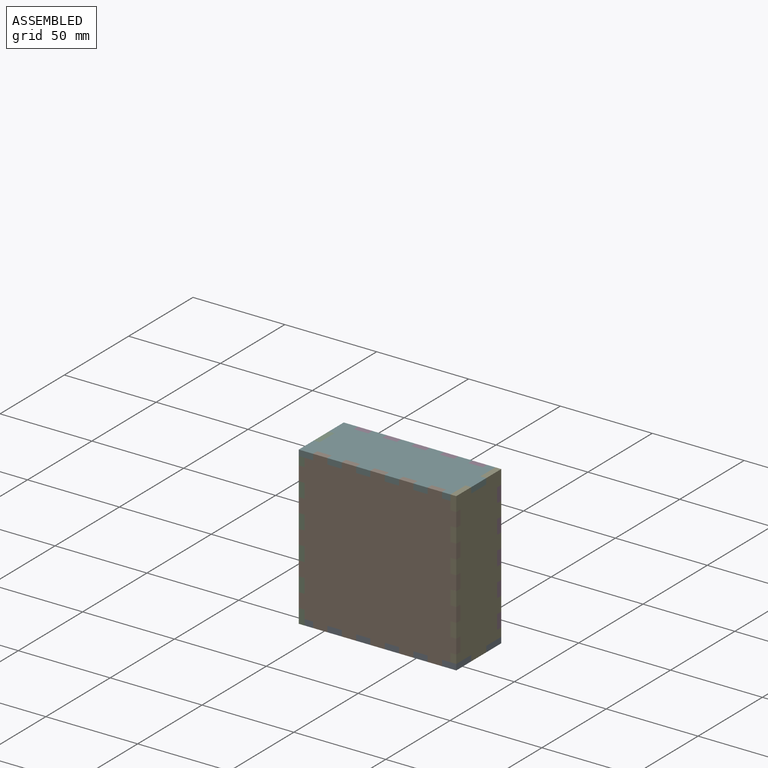
[diagram: assembled view]
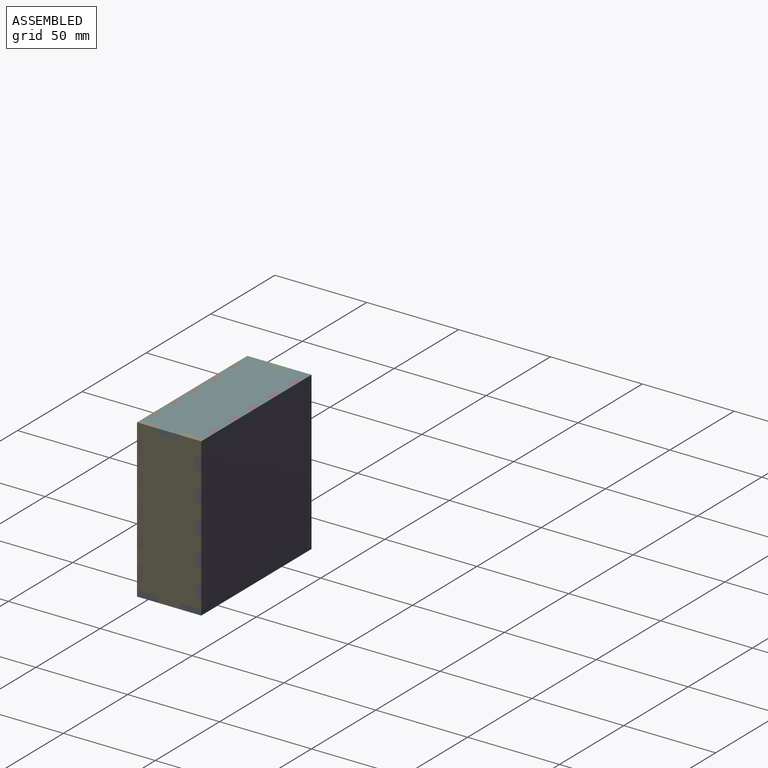
[diagram: assembled view, second angle]
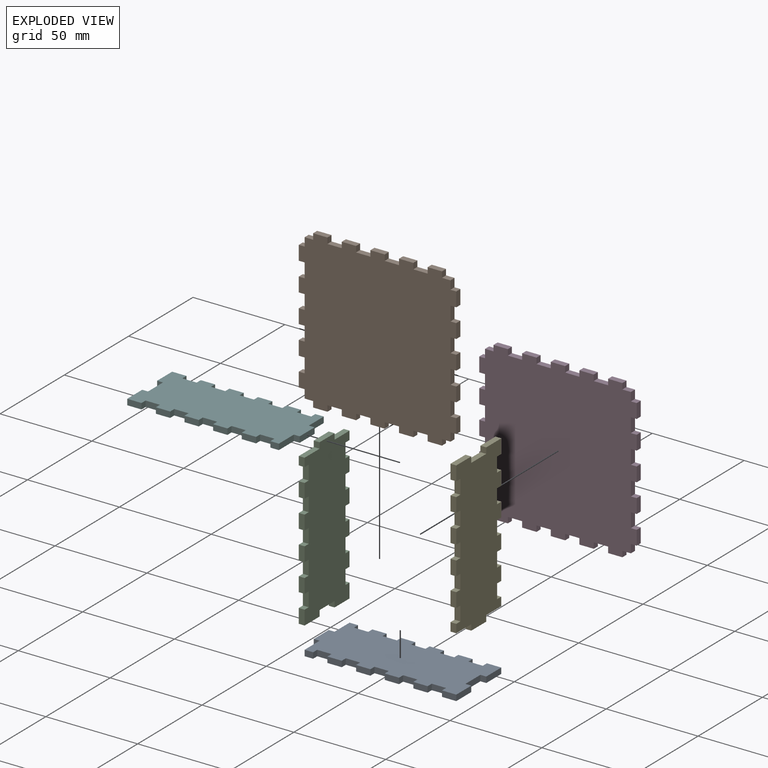
[diagram: exploded view]
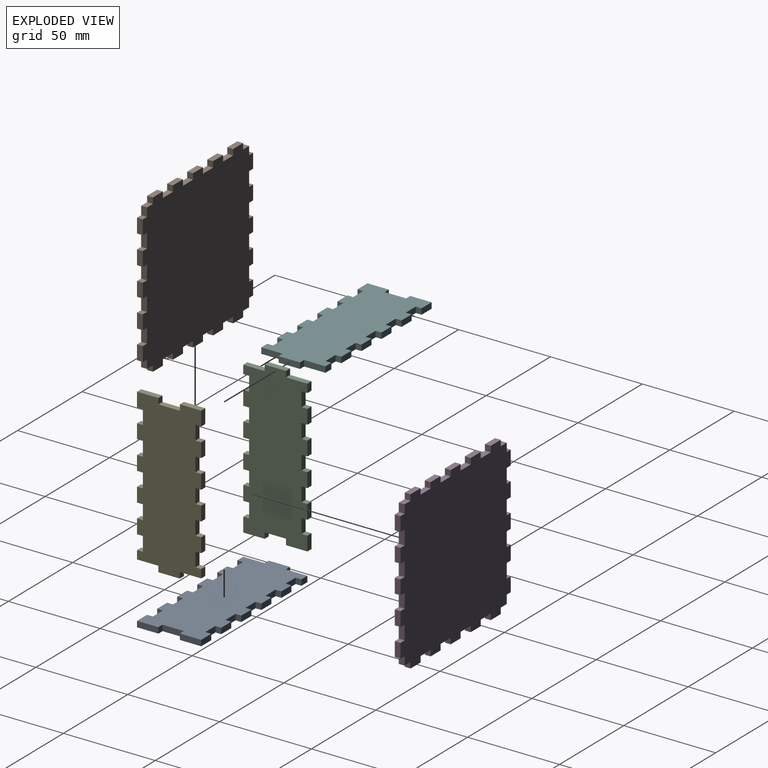
[diagram: exploded view, second angle]
ASSEMBLY  parts=6 mates=5
PART A: 54 faces, bbox 85.7x3.2x34.9 mm
  f0: plane 11.64x3.18mm, normal (1,0,0), area 37mm2, adj f1,f51,f52,f53
  f1: plane 4.62x3.18mm, normal (0,0,1), area 14.7mm2, adj f0,f2,f52,f53
  f2: plane 3.18x3.18mm, normal (-1,0,0), area 10.1mm2, adj f1,f3,f52,f53
  f3: plane 7.79x3.18mm, normal (0,0,1), area 24.7mm2, adj f2,f4,f52,f53
  f4: plane 3.18x3.18mm, normal (1,0,0), area 10.1mm2, adj f3,f5,f52,f53
  f5: plane 7.79x3.18mm, normal (0,0,1), area 24.7mm2, adj f4,f6,f52,f53
  f6: plane 3.18x3.18mm, normal (-1,0,0), area 10.1mm2, adj f5,f7,f52,f53
  f7: plane 7.79x3.18mm, normal (0,0,1), area 24.7mm2, adj f6,f8,f52,f53
  f8: plane 3.18x3.18mm, normal (1,0,0), area 10.1mm2, adj f7,f9,f52,f53
  f9: plane 7.79x3.18mm, normal (0,0,1), area 24.7mm2, adj f8,f10,f52,f53
  f10: plane 3.18x3.18mm, normal (-1,0,0), area 10.1mm2, adj f9,f11,f52,f53
  f11: plane 7.79x3.18mm, normal (0,0,1), area 24.7mm2, adj f10,f12,f52,f53
  f12: plane 3.18x3.18mm, normal (1,0,0), area 10.1mm2, adj f11,f13,f52,f53
  f13: plane 7.79x3.18mm, normal (0,0,1), area 24.7mm2, adj f12,f14,f52,f53
  f14: plane 3.18x3.18mm, normal (-1,0,0), area 10.1mm2, adj f13,f15,f52,f53
  f15: plane 7.79x3.18mm, normal (0,0,1), area 24.7mm2, adj f14,f16,f52,f53
  f16: plane 3.18x3.18mm, normal (1,0,0), area 10.1mm2, adj f15,f17,f52,f53
  f17: plane 7.79x3.18mm, normal (0,0,1), area 24.7mm2, adj f16,f18,f52,f53
  f18: plane 3.18x3.18mm, normal (-1,0,0), area 10.1mm2, adj f17,f19,f52,f53
  f19: plane 7.79x3.18mm, normal (0,0,1), area 24.7mm2, adj f18,f20,f52,f53
  f20: plane 3.18x3.18mm, normal (1,0,0), area 10.1mm2, adj f19,f21,f52,f53
  f21: plane 7.79x3.18mm, normal (0,0,1), area 24.7mm2, adj f20,f22,f52,f53
  f22: plane 11.64x3.18mm, normal (-1,0,0), area 37mm2, adj f21,f23,f52,f53
  f23: plane 3.18x3.18mm, normal (0,0,-1), area 10.1mm2, adj f22,f24,f52,f53
  f24: plane 11.64x3.18mm, normal (-1,0,0), area 37mm2, adj f23,f25,f52,f53
  f25: plane 3.18x3.18mm, normal (0,0,1), area 10.1mm2, adj f24,f26,f52,f53
  f26: plane 11.64x3.18mm, normal (-1,0,0), area 37mm2, adj f25,f27,f52,f53
  f27: plane 7.79x3.18mm, normal (0,0,-1), area 24.7mm2, adj f26,f28,f52,f53
  f28: plane 3.18x3.18mm, normal (1,0,0), area 10.1mm2, adj f27,f29,f52,f53
  f29: plane 7.79x3.18mm, normal (0,0,-1), area 24.7mm2, adj f28,f30,f52,f53
  f30: plane 3.18x3.18mm, normal (-1,0,0), area 10.1mm2, adj f29,f31,f52,f53
  f31: plane 7.79x3.18mm, normal (0,0,-1), area 24.7mm2, adj f30,f32,f52,f53
  f32: plane 3.18x3.18mm, normal (1,0,0), area 10.1mm2, adj f31,f33,f52,f53
  f33: plane 7.79x3.18mm, normal (0,0,-1), area 24.7mm2, adj f32,f34,f52,f53
  f34: plane 3.18x3.18mm, normal (-1,0,0), area 10.1mm2, adj f33,f35,f52,f53
  f35: plane 7.79x3.18mm, normal (0,0,-1), area 24.7mm2, adj f34,f36,f52,f53
  f36: plane 3.18x3.18mm, normal (1,0,0), area 10.1mm2, adj f35,f37,f52,f53
  f37: plane 7.79x3.18mm, normal (0,0,-1), area 24.7mm2, adj f36,f38,f52,f53
  f38: plane 3.18x3.18mm, normal (-1,0,0), area 10.1mm2, adj f37,f39,f52,f53
  f39: plane 7.79x3.18mm, normal (0,0,-1), area 24.7mm2, adj f38,f40,f52,f53
  f40: plane 3.18x3.18mm, normal (1,0,0), area 10.1mm2, adj f39,f41,f52,f53
  f41: plane 7.79x3.18mm, normal (0,0,-1), area 24.7mm2, adj f40,f42,f52,f53
  f42: plane 3.18x3.18mm, normal (-1,0,0), area 10.1mm2, adj f41,f43,f52,f53
  f43: plane 7.79x3.18mm, normal (0,0,-1), area 24.7mm2, adj f42,f44,f52,f53
  f44: plane 3.18x3.18mm, normal (1,0,0), area 10.1mm2, adj f43,f45,f52,f53
  f45: plane 7.79x3.18mm, normal (0,0,-1), area 24.7mm2, adj f44,f46,f52,f53
  f46: plane 3.18x3.18mm, normal (-1,0,0), area 10.1mm2, adj f45,f47,f52,f53
  f47: plane 4.62x3.18mm, normal (0,0,-1), area 14.7mm2, adj f46,f48,f52,f53
  f48: plane 11.64x3.18mm, normal (1,0,0), area 37mm2, adj f47,f49,f52,f53
  f49: plane 3.18x3.18mm, normal (0,0,-1), area 10.1mm2, adj f48,f50,f52,f53
  f50: plane 11.64x3.18mm, normal (1,0,0), area 37mm2, adj f49,f51,f52,f53
  f51: plane 3.18x3.18mm, normal (0,0,1), area 10.1mm2, adj f0,f50,f52,f53
  f52: plane 85.73x34.93mm, normal (0,-1,0), area 2635.6mm2, adj f0,f1,f2,f3,f4,f5,f6,f7
  f53: plane 85.73x34.93mm, normal (0,1,0), area 2635.6mm2, adj f0,f1,f2,f3,f4,f5,f6,f7
PART B: 86 faces, bbox 85.7x3.2x85.7 mm
  f0: plane 4.62x3.18mm, normal (1,0,0), area 14.7mm2, adj f1,f83,f84,f85
  f1: plane 4.62x3.18mm, normal (0,0,1), area 14.7mm2, adj f0,f2,f84,f85
  f2: plane 3.18x3.18mm, normal (1,0,0), area 10.1mm2, adj f1,f3,f84,f85
  f3: plane 7.79x3.18mm, normal (0,0,1), area 24.7mm2, adj f2,f4,f84,f85
  f4: plane 3.18x3.18mm, normal (-1,0,0), area 10.1mm2, adj f3,f5,f84,f85
  f5: plane 7.79x3.18mm, normal (0,0,1), area 24.7mm2, adj f4,f6,f84,f85
  f6: plane 3.18x3.18mm, normal (1,0,0), area 10.1mm2, adj f5,f7,f84,f85
  f7: plane 7.79x3.18mm, normal (0,0,1), area 24.7mm2, adj f6,f8,f84,f85
  f8: plane 3.18x3.18mm, normal (-1,0,0), area 10.1mm2, adj f7,f9,f84,f85
  f9: plane 7.79x3.18mm, normal (0,0,1), area 24.7mm2, adj f8,f10,f84,f85
  f10: plane 3.18x3.18mm, normal (1,0,0), area 10.1mm2, adj f9,f11,f84,f85
  f11: plane 7.79x3.18mm, normal (0,0,1), area 24.7mm2, adj f10,f12,f84,f85
  f12: plane 3.18x3.18mm, normal (-1,0,0), area 10.1mm2, adj f11,f13,f84,f85
  f13: plane 7.79x3.18mm, normal (0,0,1), area 24.7mm2, adj f12,f14,f84,f85
  f14: plane 3.18x3.18mm, normal (1,0,0), area 10.1mm2, adj f13,f15,f84,f85
  f15: plane 7.79x3.18mm, normal (0,0,1), area 24.7mm2, adj f14,f16,f84,f85
  f16: plane 3.18x3.18mm, normal (-1,0,0), area 10.1mm2, adj f15,f17,f84,f85
  f17: plane 7.79x3.18mm, normal (0,0,1), area 24.7mm2, adj f16,f18,f84,f85
  f18: plane 3.18x3.18mm, normal (1,0,0), area 10.1mm2, adj f17,f19,f84,f85
  f19: plane 7.79x3.18mm, normal (0,0,1), area 24.7mm2, adj f18,f20,f84,f85
  f20: plane 3.18x3.18mm, normal (-1,0,0), area 10.1mm2, adj f19,f21,f84,f85
  f21: plane 4.62x3.18mm, normal (0,0,1), area 14.7mm2, adj f20,f22,f84,f85
  f22: plane 4.62x3.18mm, normal (-1,0,0), area 14.7mm2, adj f21,f23,f84,f85
  f23: plane 3.18x3.18mm, normal (0,0,1), area 10.1mm2, adj f22,f24,f84,f85
  f24: plane 7.79x3.18mm, normal (-1,0,0), area 24.7mm2, adj f23,f25,f84,f85
  f25: plane 3.18x3.18mm, normal (0,0,-1), area 10.1mm2, adj f24,f26,f84,f85
  f26: plane 7.79x3.18mm, normal (-1,0,0), area 24.7mm2, adj f25,f27,f84,f85
  f27: plane 3.18x3.18mm, normal (0,0,1), area 10.1mm2, adj f26,f28,f84,f85
  f28: plane 7.79x3.18mm, normal (-1,0,0), area 24.7mm2, adj f27,f29,f84,f85
  f29: plane 3.18x3.18mm, normal (0,0,-1), area 10.1mm2, adj f28,f30,f84,f85
  f30: plane 7.79x3.18mm, normal (-1,0,0), area 24.7mm2, adj f29,f31,f84,f85
  f31: plane 3.18x3.18mm, normal (0,0,1), area 10.1mm2, adj f30,f32,f84,f85
  f32: plane 7.79x3.18mm, normal (-1,0,0), area 24.7mm2, adj f31,f33,f84,f85
  f33: plane 3.18x3.18mm, normal (0,0,-1), area 10.1mm2, adj f32,f34,f84,f85
  f34: plane 7.79x3.18mm, normal (-1,0,0), area 24.7mm2, adj f33,f35,f84,f85
  f35: plane 3.18x3.18mm, normal (0,0,1), area 10.1mm2, adj f34,f36,f84,f85
  f36: plane 7.79x3.18mm, normal (-1,0,0), area 24.7mm2, adj f35,f37,f84,f85
  f37: plane 3.18x3.18mm, normal (0,0,-1), area 10.1mm2, adj f36,f38,f84,f85
  f38: plane 7.79x3.18mm, normal (-1,0,0), area 24.7mm2, adj f37,f39,f84,f85
  f39: plane 3.18x3.18mm, normal (0,0,1), area 10.1mm2, adj f38,f40,f84,f85
  f40: plane 7.79x3.18mm, normal (-1,0,0), area 24.7mm2, adj f39,f41,f84,f85
  f41: plane 3.18x3.18mm, normal (0,0,-1), area 10.1mm2, adj f40,f42,f84,f85
  f42: plane 4.62x3.18mm, normal (-1,0,0), area 14.7mm2, adj f41,f43,f84,f85
  f43: plane 4.62x3.18mm, normal (0,0,-1), area 14.7mm2, adj f42,f44,f84,f85
  f44: plane 3.18x3.18mm, normal (-1,0,0), area 10.1mm2, adj f43,f45,f84,f85
  f45: plane 7.79x3.18mm, normal (0,0,-1), area 24.7mm2, adj f44,f46,f84,f85
  f46: plane 3.18x3.18mm, normal (1,0,0), area 10.1mm2, adj f45,f47,f84,f85
  f47: plane 7.79x3.18mm, normal (0,0,-1), area 24.7mm2, adj f46,f48,f84,f85
  f48: plane 3.18x3.18mm, normal (-1,0,0), area 10.1mm2, adj f47,f49,f84,f85
  f49: plane 7.79x3.18mm, normal (0,0,-1), area 24.7mm2, adj f48,f50,f84,f85
  f50: plane 3.18x3.18mm, normal (1,0,0), area 10.1mm2, adj f49,f51,f84,f85
  f51: plane 7.79x3.18mm, normal (0,0,-1), area 24.7mm2, adj f50,f52,f84,f85
  f52: plane 3.18x3.18mm, normal (-1,0,0), area 10.1mm2, adj f51,f53,f84,f85
  f53: plane 7.79x3.18mm, normal (0,0,-1), area 24.7mm2, adj f52,f54,f84,f85
  f54: plane 3.18x3.18mm, normal (1,0,0), area 10.1mm2, adj f53,f55,f84,f85
  f55: plane 7.79x3.18mm, normal (0,0,-1), area 24.7mm2, adj f54,f56,f84,f85
  f56: plane 3.18x3.18mm, normal (-1,0,0), area 10.1mm2, adj f55,f57,f84,f85
  f57: plane 7.79x3.18mm, normal (0,0,-1), area 24.7mm2, adj f56,f58,f84,f85
  f58: plane 3.18x3.18mm, normal (1,0,0), area 10.1mm2, adj f57,f59,f84,f85
  f59: plane 7.79x3.18mm, normal (0,0,-1), area 24.7mm2, adj f58,f60,f84,f85
  f60: plane 3.18x3.18mm, normal (-1,0,0), area 10.1mm2, adj f59,f61,f84,f85
  f61: plane 7.79x3.18mm, normal (0,0,-1), area 24.7mm2, adj f60,f62,f84,f85
  f62: plane 3.18x3.18mm, normal (1,0,0), area 10.1mm2, adj f61,f63,f84,f85
  f63: plane 4.62x3.18mm, normal (0,0,-1), area 14.7mm2, adj f62,f64,f84,f85
  f64: plane 4.62x3.18mm, normal (1,0,0), area 14.7mm2, adj f63,f65,f84,f85
  f65: plane 3.18x3.18mm, normal (0,0,-1), area 10.1mm2, adj f64,f66,f84,f85
  f66: plane 7.79x3.18mm, normal (1,0,0), area 24.7mm2, adj f65,f67,f84,f85
  f67: plane 3.18x3.18mm, normal (0,0,1), area 10.1mm2, adj f66,f68,f84,f85
  f68: plane 7.79x3.18mm, normal (1,0,0), area 24.7mm2, adj f67,f69,f84,f85
  f69: plane 3.18x3.18mm, normal (0,0,-1), area 10.1mm2, adj f68,f70,f84,f85
  f70: plane 7.79x3.18mm, normal (1,0,0), area 24.7mm2, adj f69,f71,f84,f85
  f71: plane 3.18x3.18mm, normal (0,0,1), area 10.1mm2, adj f70,f72,f84,f85
  f72: plane 7.79x3.18mm, normal (1,0,0), area 24.7mm2, adj f71,f73,f84,f85
  f73: plane 3.18x3.18mm, normal (0,0,-1), area 10.1mm2, adj f72,f74,f84,f85
  f74: plane 7.79x3.18mm, normal (1,0,0), area 24.7mm2, adj f73,f75,f84,f85
  f75: plane 3.18x3.18mm, normal (0,0,1), area 10.1mm2, adj f74,f76,f84,f85
  f76: plane 7.79x3.18mm, normal (1,0,0), area 24.7mm2, adj f75,f77,f84,f85
  f77: plane 3.18x3.18mm, normal (0,0,-1), area 10.1mm2, adj f76,f78,f84,f85
  f78: plane 7.79x3.18mm, normal (1,0,0), area 24.7mm2, adj f77,f79,f84,f85
  f79: plane 3.18x3.18mm, normal (0,0,1), area 10.1mm2, adj f78,f80,f84,f85
  f80: plane 7.79x3.18mm, normal (1,0,0), area 24.7mm2, adj f79,f81,f84,f85
  f81: plane 3.18x3.18mm, normal (0,0,-1), area 10.1mm2, adj f80,f82,f84,f85
  f82: plane 7.79x3.18mm, normal (1,0,0), area 24.7mm2, adj f81,f83,f84,f85
  f83: plane 3.18x3.18mm, normal (0,0,1), area 10.1mm2, adj f0,f82,f84,f85
  f84: plane 85.73x85.73mm, normal (0,-1,0), area 6795.3mm2, adj f0,f1,f2,f3,f4,f5,f6,f7
  f85: plane 85.73x85.73mm, normal (0,1,0), area 6795.3mm2, adj f0,f1,f2,f3,f4,f5,f6,f7
PART C: 54 faces, bbox 85.7x3.2x34.9 mm
  f0: plane 11.64x3.18mm, normal (1,0,0), area 37mm2, adj f1,f51,f52,f53
  f1: plane 4.62x3.18mm, normal (0,0,1), area 14.7mm2, adj f0,f2,f52,f53
  f2: plane 3.18x3.18mm, normal (-1,0,0), area 10.1mm2, adj f1,f3,f52,f53
  f3: plane 7.79x3.18mm, normal (0,0,1), area 24.7mm2, adj f2,f4,f52,f53
  f4: plane 3.18x3.18mm, normal (1,0,0), area 10.1mm2, adj f3,f5,f52,f53
  f5: plane 7.79x3.18mm, normal (0,0,1), area 24.7mm2, adj f4,f6,f52,f53
  f6: plane 3.18x3.18mm, normal (-1,0,0), area 10.1mm2, adj f5,f7,f52,f53
  f7: plane 7.79x3.18mm, normal (0,0,1), area 24.7mm2, adj f6,f8,f52,f53
  f8: plane 3.18x3.18mm, normal (1,0,0), area 10.1mm2, adj f7,f9,f52,f53
  f9: plane 7.79x3.18mm, normal (0,0,1), area 24.7mm2, adj f8,f10,f52,f53
  f10: plane 3.18x3.18mm, normal (-1,0,0), area 10.1mm2, adj f9,f11,f52,f53
  f11: plane 7.79x3.18mm, normal (0,0,1), area 24.7mm2, adj f10,f12,f52,f53
  f12: plane 3.18x3.18mm, normal (1,0,0), area 10.1mm2, adj f11,f13,f52,f53
  f13: plane 7.79x3.18mm, normal (0,0,1), area 24.7mm2, adj f12,f14,f52,f53
  f14: plane 3.18x3.18mm, normal (-1,0,0), area 10.1mm2, adj f13,f15,f52,f53
  f15: plane 7.79x3.18mm, normal (0,0,1), area 24.7mm2, adj f14,f16,f52,f53
  f16: plane 3.18x3.18mm, normal (1,0,0), area 10.1mm2, adj f15,f17,f52,f53
  f17: plane 7.79x3.18mm, normal (0,0,1), area 24.7mm2, adj f16,f18,f52,f53
  f18: plane 3.18x3.18mm, normal (-1,0,0), area 10.1mm2, adj f17,f19,f52,f53
  f19: plane 7.79x3.18mm, normal (0,0,1), area 24.7mm2, adj f18,f20,f52,f53
  f20: plane 3.18x3.18mm, normal (1,0,0), area 10.1mm2, adj f19,f21,f52,f53
  f21: plane 7.79x3.18mm, normal (0,0,1), area 24.7mm2, adj f20,f22,f52,f53
  f22: plane 11.64x3.18mm, normal (-1,0,0), area 37mm2, adj f21,f23,f52,f53
  f23: plane 3.18x3.18mm, normal (0,0,-1), area 10.1mm2, adj f22,f24,f52,f53
  f24: plane 11.64x3.18mm, normal (-1,0,0), area 37mm2, adj f23,f25,f52,f53
  f25: plane 3.18x3.18mm, normal (0,0,1), area 10.1mm2, adj f24,f26,f52,f53
  f26: plane 11.64x3.18mm, normal (-1,0,0), area 37mm2, adj f25,f27,f52,f53
  f27: plane 7.79x3.18mm, normal (0,0,-1), area 24.7mm2, adj f26,f28,f52,f53
  f28: plane 3.18x3.18mm, normal (1,0,0), area 10.1mm2, adj f27,f29,f52,f53
  f29: plane 7.79x3.18mm, normal (0,0,-1), area 24.7mm2, adj f28,f30,f52,f53
  f30: plane 3.18x3.18mm, normal (-1,0,0), area 10.1mm2, adj f29,f31,f52,f53
  f31: plane 7.79x3.18mm, normal (0,0,-1), area 24.7mm2, adj f30,f32,f52,f53
  f32: plane 3.18x3.18mm, normal (1,0,0), area 10.1mm2, adj f31,f33,f52,f53
  f33: plane 7.79x3.18mm, normal (0,0,-1), area 24.7mm2, adj f32,f34,f52,f53
  f34: plane 3.18x3.18mm, normal (-1,0,0), area 10.1mm2, adj f33,f35,f52,f53
  f35: plane 7.79x3.18mm, normal (0,0,-1), area 24.7mm2, adj f34,f36,f52,f53
  f36: plane 3.18x3.18mm, normal (1,0,0), area 10.1mm2, adj f35,f37,f52,f53
  f37: plane 7.79x3.18mm, normal (0,0,-1), area 24.7mm2, adj f36,f38,f52,f53
  f38: plane 3.18x3.18mm, normal (-1,0,0), area 10.1mm2, adj f37,f39,f52,f53
  f39: plane 7.79x3.18mm, normal (0,0,-1), area 24.7mm2, adj f38,f40,f52,f53
  f40: plane 3.18x3.18mm, normal (1,0,0), area 10.1mm2, adj f39,f41,f52,f53
  f41: plane 7.79x3.18mm, normal (0,0,-1), area 24.7mm2, adj f40,f42,f52,f53
  f42: plane 3.18x3.18mm, normal (-1,0,0), area 10.1mm2, adj f41,f43,f52,f53
  f43: plane 7.79x3.18mm, normal (0,0,-1), area 24.7mm2, adj f42,f44,f52,f53
  f44: plane 3.18x3.18mm, normal (1,0,0), area 10.1mm2, adj f43,f45,f52,f53
  f45: plane 7.79x3.18mm, normal (0,0,-1), area 24.7mm2, adj f44,f46,f52,f53
  f46: plane 3.18x3.18mm, normal (-1,0,0), area 10.1mm2, adj f45,f47,f52,f53
  f47: plane 4.62x3.18mm, normal (0,0,-1), area 14.7mm2, adj f46,f48,f52,f53
  f48: plane 11.64x3.18mm, normal (1,0,0), area 37mm2, adj f47,f49,f52,f53
  f49: plane 3.18x3.18mm, normal (0,0,-1), area 10.1mm2, adj f48,f50,f52,f53
  f50: plane 11.64x3.18mm, normal (1,0,0), area 37mm2, adj f49,f51,f52,f53
  f51: plane 3.18x3.18mm, normal (0,0,1), area 10.1mm2, adj f0,f50,f52,f53
  f52: plane 85.73x34.93mm, normal (0,-1,0), area 2635.6mm2, adj f0,f1,f2,f3,f4,f5,f6,f7
  f53: plane 85.73x34.93mm, normal (0,1,0), area 2635.6mm2, adj f0,f1,f2,f3,f4,f5,f6,f7
PART D: 86 faces, bbox 85.7x3.2x85.7 mm
  f0: plane 4.62x3.18mm, normal (1,0,0), area 14.7mm2, adj f1,f83,f84,f85
  f1: plane 4.62x3.18mm, normal (0,0,1), area 14.7mm2, adj f0,f2,f84,f85
  f2: plane 3.18x3.18mm, normal (1,0,0), area 10.1mm2, adj f1,f3,f84,f85
  f3: plane 7.79x3.18mm, normal (0,0,1), area 24.7mm2, adj f2,f4,f84,f85
  f4: plane 3.18x3.18mm, normal (-1,0,0), area 10.1mm2, adj f3,f5,f84,f85
  f5: plane 7.79x3.18mm, normal (0,0,1), area 24.7mm2, adj f4,f6,f84,f85
  f6: plane 3.18x3.18mm, normal (1,0,0), area 10.1mm2, adj f5,f7,f84,f85
  f7: plane 7.79x3.18mm, normal (0,0,1), area 24.7mm2, adj f6,f8,f84,f85
  f8: plane 3.18x3.18mm, normal (-1,0,0), area 10.1mm2, adj f7,f9,f84,f85
  f9: plane 7.79x3.18mm, normal (0,0,1), area 24.7mm2, adj f8,f10,f84,f85
  f10: plane 3.18x3.18mm, normal (1,0,0), area 10.1mm2, adj f9,f11,f84,f85
  f11: plane 7.79x3.18mm, normal (0,0,1), area 24.7mm2, adj f10,f12,f84,f85
  f12: plane 3.18x3.18mm, normal (-1,0,0), area 10.1mm2, adj f11,f13,f84,f85
  f13: plane 7.79x3.18mm, normal (0,0,1), area 24.7mm2, adj f12,f14,f84,f85
  f14: plane 3.18x3.18mm, normal (1,0,0), area 10.1mm2, adj f13,f15,f84,f85
  f15: plane 7.79x3.18mm, normal (0,0,1), area 24.7mm2, adj f14,f16,f84,f85
  f16: plane 3.18x3.18mm, normal (-1,0,0), area 10.1mm2, adj f15,f17,f84,f85
  f17: plane 7.79x3.18mm, normal (0,0,1), area 24.7mm2, adj f16,f18,f84,f85
  f18: plane 3.18x3.18mm, normal (1,0,0), area 10.1mm2, adj f17,f19,f84,f85
  f19: plane 7.79x3.18mm, normal (0,0,1), area 24.7mm2, adj f18,f20,f84,f85
  f20: plane 3.18x3.18mm, normal (-1,0,0), area 10.1mm2, adj f19,f21,f84,f85
  f21: plane 4.62x3.18mm, normal (0,0,1), area 14.7mm2, adj f20,f22,f84,f85
  f22: plane 4.62x3.18mm, normal (-1,0,0), area 14.7mm2, adj f21,f23,f84,f85
  f23: plane 3.18x3.18mm, normal (0,0,1), area 10.1mm2, adj f22,f24,f84,f85
  f24: plane 7.79x3.18mm, normal (-1,0,0), area 24.7mm2, adj f23,f25,f84,f85
  f25: plane 3.18x3.18mm, normal (0,0,-1), area 10.1mm2, adj f24,f26,f84,f85
  f26: plane 7.79x3.18mm, normal (-1,0,0), area 24.7mm2, adj f25,f27,f84,f85
  f27: plane 3.18x3.18mm, normal (0,0,1), area 10.1mm2, adj f26,f28,f84,f85
  f28: plane 7.79x3.18mm, normal (-1,0,0), area 24.7mm2, adj f27,f29,f84,f85
  f29: plane 3.18x3.18mm, normal (0,0,-1), area 10.1mm2, adj f28,f30,f84,f85
  f30: plane 7.79x3.18mm, normal (-1,0,0), area 24.7mm2, adj f29,f31,f84,f85
  f31: plane 3.18x3.18mm, normal (0,0,1), area 10.1mm2, adj f30,f32,f84,f85
  f32: plane 7.79x3.18mm, normal (-1,0,0), area 24.7mm2, adj f31,f33,f84,f85
  f33: plane 3.18x3.18mm, normal (0,0,-1), area 10.1mm2, adj f32,f34,f84,f85
  f34: plane 7.79x3.18mm, normal (-1,0,0), area 24.7mm2, adj f33,f35,f84,f85
  f35: plane 3.18x3.18mm, normal (0,0,1), area 10.1mm2, adj f34,f36,f84,f85
  f36: plane 7.79x3.18mm, normal (-1,0,0), area 24.7mm2, adj f35,f37,f84,f85
  f37: plane 3.18x3.18mm, normal (0,0,-1), area 10.1mm2, adj f36,f38,f84,f85
  f38: plane 7.79x3.18mm, normal (-1,0,0), area 24.7mm2, adj f37,f39,f84,f85
  f39: plane 3.18x3.18mm, normal (0,0,1), area 10.1mm2, adj f38,f40,f84,f85
  f40: plane 7.79x3.18mm, normal (-1,0,0), area 24.7mm2, adj f39,f41,f84,f85
  f41: plane 3.18x3.18mm, normal (0,0,-1), area 10.1mm2, adj f40,f42,f84,f85
  f42: plane 4.62x3.18mm, normal (-1,0,0), area 14.7mm2, adj f41,f43,f84,f85
  f43: plane 4.62x3.18mm, normal (0,0,-1), area 14.7mm2, adj f42,f44,f84,f85
  f44: plane 3.18x3.18mm, normal (-1,0,0), area 10.1mm2, adj f43,f45,f84,f85
  f45: plane 7.79x3.18mm, normal (0,0,-1), area 24.7mm2, adj f44,f46,f84,f85
  f46: plane 3.18x3.18mm, normal (1,0,0), area 10.1mm2, adj f45,f47,f84,f85
  f47: plane 7.79x3.18mm, normal (0,0,-1), area 24.7mm2, adj f46,f48,f84,f85
  f48: plane 3.18x3.18mm, normal (-1,0,0), area 10.1mm2, adj f47,f49,f84,f85
  f49: plane 7.79x3.18mm, normal (0,0,-1), area 24.7mm2, adj f48,f50,f84,f85
  f50: plane 3.18x3.18mm, normal (1,0,0), area 10.1mm2, adj f49,f51,f84,f85
  f51: plane 7.79x3.18mm, normal (0,0,-1), area 24.7mm2, adj f50,f52,f84,f85
  f52: plane 3.18x3.18mm, normal (-1,0,0), area 10.1mm2, adj f51,f53,f84,f85
  f53: plane 7.79x3.18mm, normal (0,0,-1), area 24.7mm2, adj f52,f54,f84,f85
  f54: plane 3.18x3.18mm, normal (1,0,0), area 10.1mm2, adj f53,f55,f84,f85
  f55: plane 7.79x3.18mm, normal (0,0,-1), area 24.7mm2, adj f54,f56,f84,f85
  f56: plane 3.18x3.18mm, normal (-1,0,0), area 10.1mm2, adj f55,f57,f84,f85
  f57: plane 7.79x3.18mm, normal (0,0,-1), area 24.7mm2, adj f56,f58,f84,f85
  f58: plane 3.18x3.18mm, normal (1,0,0), area 10.1mm2, adj f57,f59,f84,f85
  f59: plane 7.79x3.18mm, normal (0,0,-1), area 24.7mm2, adj f58,f60,f84,f85
  f60: plane 3.18x3.18mm, normal (-1,0,0), area 10.1mm2, adj f59,f61,f84,f85
  f61: plane 7.79x3.18mm, normal (0,0,-1), area 24.7mm2, adj f60,f62,f84,f85
  f62: plane 3.18x3.18mm, normal (1,0,0), area 10.1mm2, adj f61,f63,f84,f85
  f63: plane 4.62x3.18mm, normal (0,0,-1), area 14.7mm2, adj f62,f64,f84,f85
  f64: plane 4.62x3.18mm, normal (1,0,0), area 14.7mm2, adj f63,f65,f84,f85
  f65: plane 3.18x3.18mm, normal (0,0,-1), area 10.1mm2, adj f64,f66,f84,f85
  f66: plane 7.79x3.18mm, normal (1,0,0), area 24.7mm2, adj f65,f67,f84,f85
  f67: plane 3.18x3.18mm, normal (0,0,1), area 10.1mm2, adj f66,f68,f84,f85
  f68: plane 7.79x3.18mm, normal (1,0,0), area 24.7mm2, adj f67,f69,f84,f85
  f69: plane 3.18x3.18mm, normal (0,0,-1), area 10.1mm2, adj f68,f70,f84,f85
  f70: plane 7.79x3.18mm, normal (1,0,0), area 24.7mm2, adj f69,f71,f84,f85
  f71: plane 3.18x3.18mm, normal (0,0,1), area 10.1mm2, adj f70,f72,f84,f85
  f72: plane 7.79x3.18mm, normal (1,0,0), area 24.7mm2, adj f71,f73,f84,f85
  f73: plane 3.18x3.18mm, normal (0,0,-1), area 10.1mm2, adj f72,f74,f84,f85
  f74: plane 7.79x3.18mm, normal (1,0,0), area 24.7mm2, adj f73,f75,f84,f85
  f75: plane 3.18x3.18mm, normal (0,0,1), area 10.1mm2, adj f74,f76,f84,f85
  f76: plane 7.79x3.18mm, normal (1,0,0), area 24.7mm2, adj f75,f77,f84,f85
  f77: plane 3.18x3.18mm, normal (0,0,-1), area 10.1mm2, adj f76,f78,f84,f85
  f78: plane 7.79x3.18mm, normal (1,0,0), area 24.7mm2, adj f77,f79,f84,f85
  f79: plane 3.18x3.18mm, normal (0,0,1), area 10.1mm2, adj f78,f80,f84,f85
  f80: plane 7.79x3.18mm, normal (1,0,0), area 24.7mm2, adj f79,f81,f84,f85
  f81: plane 3.18x3.18mm, normal (0,0,-1), area 10.1mm2, adj f80,f82,f84,f85
  f82: plane 7.79x3.18mm, normal (1,0,0), area 24.7mm2, adj f81,f83,f84,f85
  f83: plane 3.18x3.18mm, normal (0,0,1), area 10.1mm2, adj f0,f82,f84,f85
  f84: plane 85.73x85.73mm, normal (0,-1,0), area 6795.3mm2, adj f0,f1,f2,f3,f4,f5,f6,f7
  f85: plane 85.73x85.73mm, normal (0,1,0), area 6795.3mm2, adj f0,f1,f2,f3,f4,f5,f6,f7
PART E: 54 faces, bbox 85.7x3.2x34.9 mm
  f0: plane 11.64x3.18mm, normal (1,0,0), area 37mm2, adj f1,f51,f52,f53
  f1: plane 4.62x3.18mm, normal (0,0,1), area 14.7mm2, adj f0,f2,f52,f53
  f2: plane 3.18x3.18mm, normal (-1,0,0), area 10.1mm2, adj f1,f3,f52,f53
  f3: plane 7.79x3.18mm, normal (0,0,1), area 24.7mm2, adj f2,f4,f52,f53
  f4: plane 3.18x3.18mm, normal (1,0,0), area 10.1mm2, adj f3,f5,f52,f53
  f5: plane 7.79x3.18mm, normal (0,0,1), area 24.7mm2, adj f4,f6,f52,f53
  f6: plane 3.18x3.18mm, normal (-1,0,0), area 10.1mm2, adj f5,f7,f52,f53
  f7: plane 7.79x3.18mm, normal (0,0,1), area 24.7mm2, adj f6,f8,f52,f53
  f8: plane 3.18x3.18mm, normal (1,0,0), area 10.1mm2, adj f7,f9,f52,f53
  f9: plane 7.79x3.18mm, normal (0,0,1), area 24.7mm2, adj f8,f10,f52,f53
  f10: plane 3.18x3.18mm, normal (-1,0,0), area 10.1mm2, adj f9,f11,f52,f53
  f11: plane 7.79x3.18mm, normal (0,0,1), area 24.7mm2, adj f10,f12,f52,f53
  f12: plane 3.18x3.18mm, normal (1,0,0), area 10.1mm2, adj f11,f13,f52,f53
  f13: plane 7.79x3.18mm, normal (0,0,1), area 24.7mm2, adj f12,f14,f52,f53
  f14: plane 3.18x3.18mm, normal (-1,0,0), area 10.1mm2, adj f13,f15,f52,f53
  f15: plane 7.79x3.18mm, normal (0,0,1), area 24.7mm2, adj f14,f16,f52,f53
  f16: plane 3.18x3.18mm, normal (1,0,0), area 10.1mm2, adj f15,f17,f52,f53
  f17: plane 7.79x3.18mm, normal (0,0,1), area 24.7mm2, adj f16,f18,f52,f53
  f18: plane 3.18x3.18mm, normal (-1,0,0), area 10.1mm2, adj f17,f19,f52,f53
  f19: plane 7.79x3.18mm, normal (0,0,1), area 24.7mm2, adj f18,f20,f52,f53
  f20: plane 3.18x3.18mm, normal (1,0,0), area 10.1mm2, adj f19,f21,f52,f53
  f21: plane 7.79x3.18mm, normal (0,0,1), area 24.7mm2, adj f20,f22,f52,f53
  f22: plane 11.64x3.18mm, normal (-1,0,0), area 37mm2, adj f21,f23,f52,f53
  f23: plane 3.18x3.18mm, normal (0,0,-1), area 10.1mm2, adj f22,f24,f52,f53
  f24: plane 11.64x3.18mm, normal (-1,0,0), area 37mm2, adj f23,f25,f52,f53
  f25: plane 3.18x3.18mm, normal (0,0,1), area 10.1mm2, adj f24,f26,f52,f53
  f26: plane 11.64x3.18mm, normal (-1,0,0), area 37mm2, adj f25,f27,f52,f53
  f27: plane 7.79x3.18mm, normal (0,0,-1), area 24.7mm2, adj f26,f28,f52,f53
  f28: plane 3.18x3.18mm, normal (1,0,0), area 10.1mm2, adj f27,f29,f52,f53
  f29: plane 7.79x3.18mm, normal (0,0,-1), area 24.7mm2, adj f28,f30,f52,f53
  f30: plane 3.18x3.18mm, normal (-1,0,0), area 10.1mm2, adj f29,f31,f52,f53
  f31: plane 7.79x3.18mm, normal (0,0,-1), area 24.7mm2, adj f30,f32,f52,f53
  f32: plane 3.18x3.18mm, normal (1,0,0), area 10.1mm2, adj f31,f33,f52,f53
  f33: plane 7.79x3.18mm, normal (0,0,-1), area 24.7mm2, adj f32,f34,f52,f53
  f34: plane 3.18x3.18mm, normal (-1,0,0), area 10.1mm2, adj f33,f35,f52,f53
  f35: plane 7.79x3.18mm, normal (0,0,-1), area 24.7mm2, adj f34,f36,f52,f53
  f36: plane 3.18x3.18mm, normal (1,0,0), area 10.1mm2, adj f35,f37,f52,f53
  f37: plane 7.79x3.18mm, normal (0,0,-1), area 24.7mm2, adj f36,f38,f52,f53
  f38: plane 3.18x3.18mm, normal (-1,0,0), area 10.1mm2, adj f37,f39,f52,f53
  f39: plane 7.79x3.18mm, normal (0,0,-1), area 24.7mm2, adj f38,f40,f52,f53
  f40: plane 3.18x3.18mm, normal (1,0,0), area 10.1mm2, adj f39,f41,f52,f53
  f41: plane 7.79x3.18mm, normal (0,0,-1), area 24.7mm2, adj f40,f42,f52,f53
  f42: plane 3.18x3.18mm, normal (-1,0,0), area 10.1mm2, adj f41,f43,f52,f53
  f43: plane 7.79x3.18mm, normal (0,0,-1), area 24.7mm2, adj f42,f44,f52,f53
  f44: plane 3.18x3.18mm, normal (1,0,0), area 10.1mm2, adj f43,f45,f52,f53
  f45: plane 7.79x3.18mm, normal (0,0,-1), area 24.7mm2, adj f44,f46,f52,f53
  f46: plane 3.18x3.18mm, normal (-1,0,0), area 10.1mm2, adj f45,f47,f52,f53
  f47: plane 4.62x3.18mm, normal (0,0,-1), area 14.7mm2, adj f46,f48,f52,f53
  f48: plane 11.64x3.18mm, normal (1,0,0), area 37mm2, adj f47,f49,f52,f53
  f49: plane 3.18x3.18mm, normal (0,0,-1), area 10.1mm2, adj f48,f50,f52,f53
  f50: plane 11.64x3.18mm, normal (1,0,0), area 37mm2, adj f49,f51,f52,f53
  f51: plane 3.18x3.18mm, normal (0,0,1), area 10.1mm2, adj f0,f50,f52,f53
  f52: plane 85.73x34.93mm, normal (0,-1,0), area 2635.6mm2, adj f0,f1,f2,f3,f4,f5,f6,f7
  f53: plane 85.73x34.93mm, normal (0,1,0), area 2635.6mm2, adj f0,f1,f2,f3,f4,f5,f6,f7
PART F: 54 faces, bbox 85.7x3.2x34.9 mm
  f0: plane 11.64x3.18mm, normal (1,0,0), area 37mm2, adj f1,f51,f52,f53
  f1: plane 4.62x3.18mm, normal (0,0,1), area 14.7mm2, adj f0,f2,f52,f53
  f2: plane 3.18x3.18mm, normal (-1,0,0), area 10.1mm2, adj f1,f3,f52,f53
  f3: plane 7.79x3.18mm, normal (0,0,1), area 24.7mm2, adj f2,f4,f52,f53
  f4: plane 3.18x3.18mm, normal (1,0,0), area 10.1mm2, adj f3,f5,f52,f53
  f5: plane 7.79x3.18mm, normal (0,0,1), area 24.7mm2, adj f4,f6,f52,f53
  f6: plane 3.18x3.18mm, normal (-1,0,0), area 10.1mm2, adj f5,f7,f52,f53
  f7: plane 7.79x3.18mm, normal (0,0,1), area 24.7mm2, adj f6,f8,f52,f53
  f8: plane 3.18x3.18mm, normal (1,0,0), area 10.1mm2, adj f7,f9,f52,f53
  f9: plane 7.79x3.18mm, normal (0,0,1), area 24.7mm2, adj f8,f10,f52,f53
  f10: plane 3.18x3.18mm, normal (-1,0,0), area 10.1mm2, adj f9,f11,f52,f53
  f11: plane 7.79x3.18mm, normal (0,0,1), area 24.7mm2, adj f10,f12,f52,f53
  f12: plane 3.18x3.18mm, normal (1,0,0), area 10.1mm2, adj f11,f13,f52,f53
  f13: plane 7.79x3.18mm, normal (0,0,1), area 24.7mm2, adj f12,f14,f52,f53
  f14: plane 3.18x3.18mm, normal (-1,0,0), area 10.1mm2, adj f13,f15,f52,f53
  f15: plane 7.79x3.18mm, normal (0,0,1), area 24.7mm2, adj f14,f16,f52,f53
  f16: plane 3.18x3.18mm, normal (1,0,0), area 10.1mm2, adj f15,f17,f52,f53
  f17: plane 7.79x3.18mm, normal (0,0,1), area 24.7mm2, adj f16,f18,f52,f53
  f18: plane 3.18x3.18mm, normal (-1,0,0), area 10.1mm2, adj f17,f19,f52,f53
  f19: plane 7.79x3.18mm, normal (0,0,1), area 24.7mm2, adj f18,f20,f52,f53
  f20: plane 3.18x3.18mm, normal (1,0,0), area 10.1mm2, adj f19,f21,f52,f53
  f21: plane 7.79x3.18mm, normal (0,0,1), area 24.7mm2, adj f20,f22,f52,f53
  f22: plane 11.64x3.18mm, normal (-1,0,0), area 37mm2, adj f21,f23,f52,f53
  f23: plane 3.18x3.18mm, normal (0,0,-1), area 10.1mm2, adj f22,f24,f52,f53
  f24: plane 11.64x3.18mm, normal (-1,0,0), area 37mm2, adj f23,f25,f52,f53
  f25: plane 3.18x3.18mm, normal (0,0,1), area 10.1mm2, adj f24,f26,f52,f53
  f26: plane 11.64x3.18mm, normal (-1,0,0), area 37mm2, adj f25,f27,f52,f53
  f27: plane 7.79x3.18mm, normal (0,0,-1), area 24.7mm2, adj f26,f28,f52,f53
  f28: plane 3.18x3.18mm, normal (1,0,0), area 10.1mm2, adj f27,f29,f52,f53
  f29: plane 7.79x3.18mm, normal (0,0,-1), area 24.7mm2, adj f28,f30,f52,f53
  f30: plane 3.18x3.18mm, normal (-1,0,0), area 10.1mm2, adj f29,f31,f52,f53
  f31: plane 7.79x3.18mm, normal (0,0,-1), area 24.7mm2, adj f30,f32,f52,f53
  f32: plane 3.18x3.18mm, normal (1,0,0), area 10.1mm2, adj f31,f33,f52,f53
  f33: plane 7.79x3.18mm, normal (0,0,-1), area 24.7mm2, adj f32,f34,f52,f53
  f34: plane 3.18x3.18mm, normal (-1,0,0), area 10.1mm2, adj f33,f35,f52,f53
  f35: plane 7.79x3.18mm, normal (0,0,-1), area 24.7mm2, adj f34,f36,f52,f53
  f36: plane 3.18x3.18mm, normal (1,0,0), area 10.1mm2, adj f35,f37,f52,f53
  f37: plane 7.79x3.18mm, normal (0,0,-1), area 24.7mm2, adj f36,f38,f52,f53
  f38: plane 3.18x3.18mm, normal (-1,0,0), area 10.1mm2, adj f37,f39,f52,f53
  f39: plane 7.79x3.18mm, normal (0,0,-1), area 24.7mm2, adj f38,f40,f52,f53
  f40: plane 3.18x3.18mm, normal (1,0,0), area 10.1mm2, adj f39,f41,f52,f53
  f41: plane 7.79x3.18mm, normal (0,0,-1), area 24.7mm2, adj f40,f42,f52,f53
  f42: plane 3.18x3.18mm, normal (-1,0,0), area 10.1mm2, adj f41,f43,f52,f53
  f43: plane 7.79x3.18mm, normal (0,0,-1), area 24.7mm2, adj f42,f44,f52,f53
  f44: plane 3.18x3.18mm, normal (1,0,0), area 10.1mm2, adj f43,f45,f52,f53
  f45: plane 7.79x3.18mm, normal (0,0,-1), area 24.7mm2, adj f44,f46,f52,f53
  f46: plane 3.18x3.18mm, normal (-1,0,0), area 10.1mm2, adj f45,f47,f52,f53
  f47: plane 4.62x3.18mm, normal (0,0,-1), area 14.7mm2, adj f46,f48,f52,f53
  f48: plane 11.64x3.18mm, normal (1,0,0), area 37mm2, adj f47,f49,f52,f53
  f49: plane 3.18x3.18mm, normal (0,0,-1), area 10.1mm2, adj f48,f50,f52,f53
  f50: plane 11.64x3.18mm, normal (1,0,0), area 37mm2, adj f49,f51,f52,f53
  f51: plane 3.18x3.18mm, normal (0,0,1), area 10.1mm2, adj f0,f50,f52,f53
  f52: plane 85.73x34.93mm, normal (0,-1,0), area 2635.6mm2, adj f0,f1,f2,f3,f4,f5,f6,f7
  f53: plane 85.73x34.93mm, normal (0,1,0), area 2635.6mm2, adj f0,f1,f2,f3,f4,f5,f6,f7
PLACE A rot(axis=(0,0.71,0.71),180deg) t=(0,100.72,-87.55)mm
PLACE B t=(0,-31.75,-140.65)mm
PLACE C rot(axis=(0.58,-0.58,0.58),120deg) t=(-42.86,-90.73,47.86)mm
PLACE D at identity
PLACE E rot(axis=(0.58,0.58,-0.58),120deg) t=(42.86,-90.73,47.86)mm
PLACE F rot(axis=(1,0,0),90deg) t=(0,5,-5)mm
MATE fastened E.f50 <-> A.f52  axis (0,0,-1) through (39.69,-17.46,-90.73)mm
MATE fastened C.f52 <-> F.f24  axis (1,0,0) through (-39.69,-17.46,-5)mm
MATE fastened B.f49 <-> A.f52  axis (0,0,-1) through (-15.59,-31.75,-90.73)mm
MATE fastened F.f35 <-> D.f85  axis (0,1,0) through (-7.79,0,-8.18)mm
MATE fastened A.f53 <-> C.f24  axis (0,0,1) through (-42.86,-17.46,-87.55)mm
